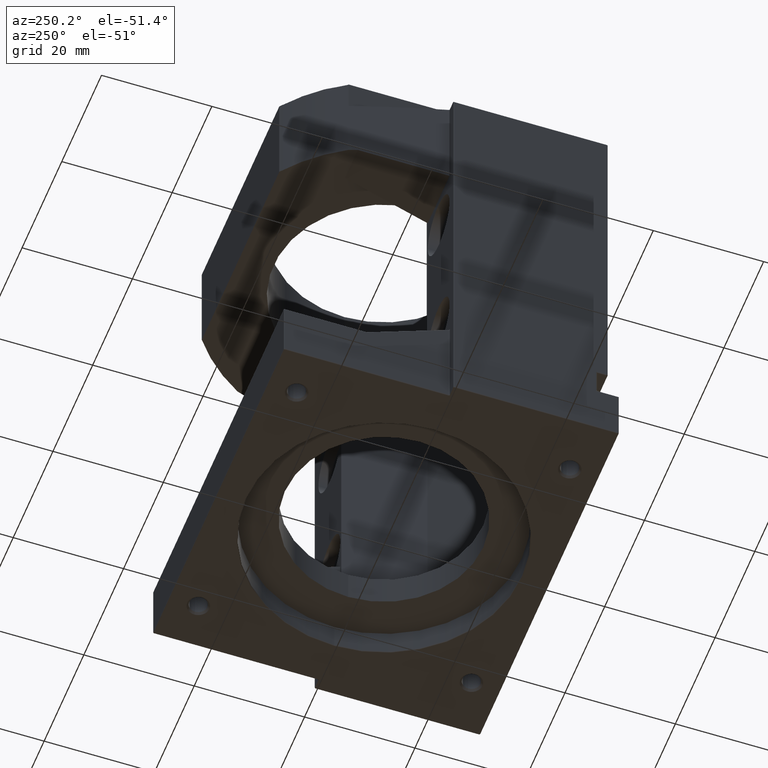
[diagram: clean part render]
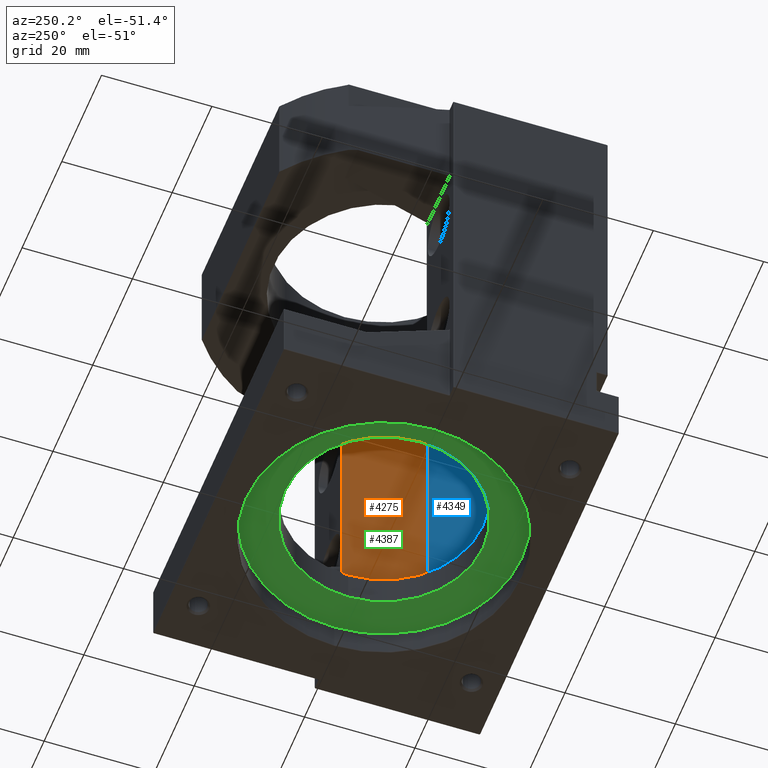
[diagram: same view with three faces highlighted in distinct colors, each labeled with its STEP entity id]
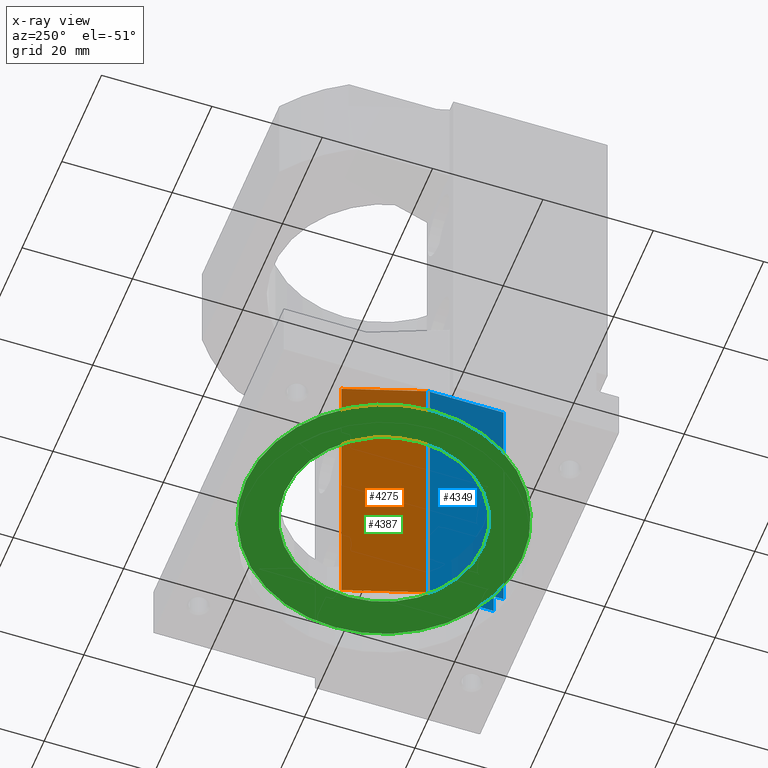
[diagram: x-ray of the same camera — body ghosted, the three highlighted faces saturated]
A machine part, auxiliary view with three faces highlighted in distinct colors.
The next image is the same camera in x-ray (body ghosted, the three faces saturated) — at least one of them is partly hidden behind the body in this view.
Their STEP definitions:

[orange] entity #4275 — the highlighted planar face has unit normal (-0.952, 0.306, 0).
#11 = ORIENTED_EDGE ( 'NONE', *, *, #6142, .F. ) ;
#13 = ORIENTED_EDGE ( 'NONE', *, *, #6146, .T. ) ;
#15 = ORIENTED_EDGE ( 'NONE', *, *, #6437, .F. ) ;
#16 = ORIENTED_EDGE ( 'NONE', *, *, #4325, .T. ) ;
#502 = VERTEX_POINT ( 'NONE', #5855 ) ;
#517 = VERTEX_POINT ( 'NONE', #5767 ) ;
#518 = VERTEX_POINT ( 'NONE', #5766 ) ;
#546 = VERTEX_POINT ( 'NONE', #3110 ) ;
#723 = EDGE_LOOP ( 'NONE', ( #11, #16, #13, #15 ) ) ;
#1371 = FACE_OUTER_BOUND ( 'NONE', #723, .T. ) ;
#1405 = LINE ( 'NONE', #1978, #4573 ) ;
#1697 = LINE ( 'NONE', #3567, #5203 ) ;
#1701 = LINE ( 'NONE', #3575, #5209 ) ;
#1715 = LINE ( 'NONE', #3612, #5233 ) ;
#1978 = CARTESIAN_POINT ( 'NONE',  ( 17.00000000000000700, -13.99999999999999100, 60.50000000000000700 ) ) ;
#1979 = DIRECTION ( 'NONE',  ( 0.3060091804131211400, 0.9520285612852641400, 0.0000000000000000000 ) ) ;
#3110 = CARTESIAN_POINT ( 'NONE',  ( 17.00000000000000700, -13.99999999999999100, 60.50000000000000700 ) ) ;
#3567 = CARTESIAN_POINT ( 'NONE',  ( 17.00000000000000700, -13.99999999999999100, 67.50000000000000000 ) ) ;
#3568 = DIRECTION ( 'NONE',  ( -0.0000000000000000000, -0.0000000000000000000, -1.000000000000000000 ) ) ;
#3575 = CARTESIAN_POINT ( 'NONE',  ( 21.50000000000001400, 8.347237722926682600E-015, 67.50000000000000000 ) ) ;
#3576 = DIRECTION ( 'NONE',  ( -0.0000000000000000000, -0.0000000000000000000, -1.000000000000000000 ) ) ;
#3612 = CARTESIAN_POINT ( 'NONE',  ( 17.00000000000000700, -13.99999999999999100, 5.500000000000000000 ) ) ;
#3613 = DIRECTION ( 'NONE',  ( 0.3060091804131211400, 0.9520285612852641400, 0.0000000000000000000 ) ) ;
#4275 = ADVANCED_FACE ( 'NONE', ( #1371 ), #4948, .T. ) ;
#4325 = EDGE_CURVE ( 'NONE', #546, #502, #1405, .T. ) ;
#4468 = AXIS2_PLACEMENT_3D ( 'NONE', #4577, #4543, #4474 ) ;
#4474 = DIRECTION ( 'NONE',  ( -0.3060091804131211400, -0.9520285612852641400, 0.0000000000000000000 ) ) ;
#4543 = DIRECTION ( 'NONE',  ( -0.9520285612852641400, 0.3060091804131211400, 0.0000000000000000000 ) ) ;
#4573 = VECTOR ( 'NONE', #1979, 1000.000000000000100 ) ;
#4577 = CARTESIAN_POINT ( 'NONE',  ( 17.00000000000000700, -13.99999999999999100, 67.50000000000000000 ) ) ;
#4948 = PLANE ( 'NONE',  #4468 ) ;
#5203 = VECTOR ( 'NONE', #3568, 1000.000000000000000 ) ;
#5209 = VECTOR ( 'NONE', #3576, 1000.000000000000000 ) ;
#5233 = VECTOR ( 'NONE', #3613, 1000.000000000000100 ) ;
#5766 = CARTESIAN_POINT ( 'NONE',  ( 17.00000000000000700, -13.99999999999999100, 5.500000000000000000 ) ) ;
#5767 = CARTESIAN_POINT ( 'NONE',  ( 21.50000000000001400, 6.938893903907228400E-015, 5.500000000000000000 ) ) ;
#5855 = CARTESIAN_POINT ( 'NONE',  ( 21.50000000000001400, 8.673617379884035500E-015, 60.50000000000000700 ) ) ;
#6142 = EDGE_CURVE ( 'NONE', #546, #518, #1697, .T. ) ;
#6146 = EDGE_CURVE ( 'NONE', #502, #517, #1701, .T. ) ;
#6437 = EDGE_CURVE ( 'NONE', #518, #517, #1715, .T. ) ;

[blue] entity #4349 — the highlighted planar face has unit normal (-1, 0, 0).
#17 = ORIENTED_EDGE ( 'NONE', *, *, #6131, .F. ) ;
#18 = ORIENTED_EDGE ( 'NONE', *, *, #4302, .T. ) ;
#19 = ORIENTED_EDGE ( 'NONE', *, *, #6143, .T. ) ;
#20 = ORIENTED_EDGE ( 'NONE', *, *, #6438, .F. ) ;
#21 = ORIENTED_EDGE ( 'NONE', *, *, #6142, .T. ) ;
#22 = ORIENTED_EDGE ( 'NONE', *, *, #6132, .F. ) ;
#420 = VERTEX_POINT ( 'NONE', #5894 ) ;
#421 = VERTEX_POINT ( 'NONE', #5839 ) ;
#518 = VERTEX_POINT ( 'NONE', #5766 ) ;
#519 = VERTEX_POINT ( 'NONE', #5765 ) ;
#546 = VERTEX_POINT ( 'NONE', #3110 ) ;
#547 = VERTEX_POINT ( 'NONE', #3282 ) ;
#724 = EDGE_LOOP ( 'NONE', ( #17, #19, #18, #21, #20, #22 ) ) ;
#1388 = LINE ( 'NONE', #5719, #4528 ) ;
#1440 = FACE_OUTER_BOUND ( 'NONE', #724, .T. ) ;
#1689 = LINE ( 'NONE', #3540, #5188 ) ;
#1690 = LINE ( 'NONE', #3542, #5189 ) ;
#1697 = LINE ( 'NONE', #3567, #5203 ) ;
#1698 = LINE ( 'NONE', #3569, #5205 ) ;
#1716 = LINE ( 'NONE', #3614, #5234 ) ;
#2060 = PLANE ( 'NONE',  #4613 ) ;
#2061 = CARTESIAN_POINT ( 'NONE',  ( 17.00000000000000700, -29.99999999999999300, 67.50000000000000000 ) ) ;
#2062 = DIRECTION ( 'NONE',  ( -1.000000000000000000, 0.0000000000000000000, 0.0000000000000000000 ) ) ;
#2063 = DIRECTION ( 'NONE',  ( 0.0000000000000000000, 0.0000000000000000000, 1.000000000000000000 ) ) ;
#3110 = CARTESIAN_POINT ( 'NONE',  ( 17.00000000000000700, -13.99999999999999100, 60.50000000000000700 ) ) ;
#3282 = CARTESIAN_POINT ( 'NONE',  ( 17.00000000000000700, -27.79999999999999000, 60.50000000000000700 ) ) ;
#3540 = CARTESIAN_POINT ( 'NONE',  ( 17.00000000000000700, -29.99999999999999300, 9.500000000000001800 ) ) ;
#3541 = DIRECTION ( 'NONE',  ( 0.0000000000000000000, 1.000000000000000000, -0.0000000000000000000 ) ) ;
#3542 = CARTESIAN_POINT ( 'NONE',  ( 17.00000000000000700, -26.00000000000003200, 67.50000000000000000 ) ) ;
#3543 = DIRECTION ( 'NONE',  ( 0.0000000000000000000, 6.938893903907228400E-016, -1.000000000000000000 ) ) ;
#3567 = CARTESIAN_POINT ( 'NONE',  ( 17.00000000000000700, -13.99999999999999100, 67.50000000000000000 ) ) ;
#3568 = DIRECTION ( 'NONE',  ( -0.0000000000000000000, -0.0000000000000000000, -1.000000000000000000 ) ) ;
#3569 = CARTESIAN_POINT ( 'NONE',  ( 17.00000000000000700, -27.79999999999999000, 60.50000000000000000 ) ) ;
#3570 = DIRECTION ( 'NONE',  ( -0.0000000000000000000, -0.0000000000000000000, 1.000000000000000000 ) ) ;
#3614 = CARTESIAN_POINT ( 'NONE',  ( 17.00000000000000700, -29.99999999999999300, 5.500000000000000000 ) ) ;
#3615 = DIRECTION ( 'NONE',  ( 0.0000000000000000000, 1.000000000000000000, 0.0000000000000000000 ) ) ;
#4302 = EDGE_CURVE ( 'NONE', #547, #546, #1388, .T. ) ;
#4349 = ADVANCED_FACE ( 'NONE', ( #1440 ), #2060, .T. ) ;
#4528 = VECTOR ( 'NONE', #5704, 1000.000000000000000 ) ;
#4613 = AXIS2_PLACEMENT_3D ( 'NONE', #2061, #2062, #2063 ) ;
#5188 = VECTOR ( 'NONE', #3541, 1000.000000000000000 ) ;
#5189 = VECTOR ( 'NONE', #3543, 1000.000000000000000 ) ;
#5203 = VECTOR ( 'NONE', #3568, 1000.000000000000000 ) ;
#5205 = VECTOR ( 'NONE', #3570, 1000.000000000000000 ) ;
#5234 = VECTOR ( 'NONE', #3615, 1000.000000000000000 ) ;
#5704 = DIRECTION ( 'NONE',  ( 0.0000000000000000000, 1.000000000000000000, 0.0000000000000000000 ) ) ;
#5719 = CARTESIAN_POINT ( 'NONE',  ( 17.00000000000000700, -29.99999999999999300, 60.50000000000000700 ) ) ;
#5765 = CARTESIAN_POINT ( 'NONE',  ( 17.00000000000000700, -25.99999999999999300, 5.500000000000000000 ) ) ;
#5766 = CARTESIAN_POINT ( 'NONE',  ( 17.00000000000000700, -13.99999999999999100, 5.500000000000000000 ) ) ;
#5839 = CARTESIAN_POINT ( 'NONE',  ( 17.00000000000000700, -27.79999999999999000, 9.500000000000001800 ) ) ;
#5894 = CARTESIAN_POINT ( 'NONE',  ( 17.00000000000000700, -25.99999999999999600, 9.500000000000001800 ) ) ;
#6131 = EDGE_CURVE ( 'NONE', #421, #420, #1689, .T. ) ;
#6132 = EDGE_CURVE ( 'NONE', #420, #519, #1690, .T. ) ;
#6142 = EDGE_CURVE ( 'NONE', #546, #518, #1697, .T. ) ;
#6143 = EDGE_CURVE ( 'NONE', #421, #547, #1698, .T. ) ;
#6438 = EDGE_CURVE ( 'NONE', #519, #518, #1716, .T. ) ;

[green] entity #4387 — the highlighted planar face has unit normal (0, 0, -1).
#39 = ORIENTED_EDGE ( 'NONE', *, *, #6129, .T. ) ;
#40 = ORIENTED_EDGE ( 'NONE', *, *, #5512, .T. ) ;
#41 = ORIENTED_EDGE ( 'NONE', *, *, #6140, .F. ) ;
#42 = ORIENTED_EDGE ( 'NONE', *, *, #6050, .F. ) ;
#405 = VERTEX_POINT ( 'NONE', #5884 ) ;
#406 = VERTEX_POINT ( 'NONE', #5838 ) ;
#487 = VERTEX_POINT ( 'NONE', #5761 ) ;
#488 = VERTEX_POINT ( 'NONE', #5760 ) ;
#729 = EDGE_LOOP ( 'NONE', ( #39, #40 ) ) ;
#730 = EDGE_LOOP ( 'NONE', ( #41, #42 ) ) ;
#1478 = FACE_OUTER_BOUND ( 'NONE', #729, .T. ) ;
#1479 = FACE_BOUND ( 'NONE', #730, .T. ) ;
#2182 = PLANE ( 'NONE',  #4694 ) ;
#2183 = CARTESIAN_POINT ( 'NONE',  ( 0.0000000000000000000, 0.0000000000000000000, -0.4999999999999995600 ) ) ;
#2184 = DIRECTION ( 'NONE',  ( 0.0000000000000000000, 0.0000000000000000000, -1.000000000000000000 ) ) ;
#2185 = DIRECTION ( 'NONE',  ( -1.000000000000000000, 0.0000000000000000000, -0.0000000000000000000 ) ) ;
#2221 = CARTESIAN_POINT ( 'NONE',  ( 0.0000000000000000000, 0.0000000000000000000, -0.4999999999999995600 ) ) ;
#2222 = DIRECTION ( 'NONE',  ( 0.0000000000000000000, 0.0000000000000000000, -1.000000000000000000 ) ) ;
#2223 = DIRECTION ( 'NONE',  ( -1.000000000000000000, 0.0000000000000000000, 0.0000000000000000000 ) ) ;
#2922 = CARTESIAN_POINT ( 'NONE',  ( 0.0000000000000000000, 0.0000000000000000000, -0.4999999999999995600 ) ) ;
#2923 = DIRECTION ( 'NONE',  ( 0.0000000000000000000, 0.0000000000000000000, -1.000000000000000000 ) ) ;
#2924 = DIRECTION ( 'NONE',  ( -1.000000000000000000, 0.0000000000000000000, 0.0000000000000000000 ) ) ;
#3535 = CARTESIAN_POINT ( 'NONE',  ( 0.0000000000000000000, 0.0000000000000000000, -0.4999999999999995600 ) ) ;
#3536 = DIRECTION ( 'NONE',  ( 0.0000000000000000000, 0.0000000000000000000, -1.000000000000000000 ) ) ;
#3537 = DIRECTION ( 'NONE',  ( -1.000000000000000000, 0.0000000000000000000, 0.0000000000000000000 ) ) ;
#3562 = CARTESIAN_POINT ( 'NONE',  ( 0.0000000000000000000, 0.0000000000000000000, -0.4999999999999995600 ) ) ;
#3563 = DIRECTION ( 'NONE',  ( 0.0000000000000000000, 0.0000000000000000000, -1.000000000000000000 ) ) ;
#3564 = DIRECTION ( 'NONE',  ( -1.000000000000000000, 0.0000000000000000000, 0.0000000000000000000 ) ) ;
#4387 = ADVANCED_FACE ( 'NONE', ( #1478, #1479 ), #2182, .T. ) ;
#4694 = AXIS2_PLACEMENT_3D ( 'NONE', #2183, #2184, #2185 ) ;
#4701 = CIRCLE ( 'NONE', #4703, 25.00000000000000000 ) ;
#4703 = AXIS2_PLACEMENT_3D ( 'NONE', #2221, #2222, #2223 ) ;
#5062 = CIRCLE ( 'NONE', #5078, 18.00000000000000000 ) ;
#5078 = AXIS2_PLACEMENT_3D ( 'NONE', #2922, #2923, #2924 ) ;
#5180 = CIRCLE ( 'NONE', #5185, 25.00000000000000000 ) ;
#5185 = AXIS2_PLACEMENT_3D ( 'NONE', #3535, #3536, #3537 ) ;
#5193 = CIRCLE ( 'NONE', #5201, 18.00000000000000000 ) ;
#5201 = AXIS2_PLACEMENT_3D ( 'NONE', #3562, #3563, #3564 ) ;
#5512 = EDGE_CURVE ( 'NONE', #406, #405, #4701, .T. ) ;
#5760 = CARTESIAN_POINT ( 'NONE',  ( 18.00000000000000000, 2.204364238465235400E-015, -0.4999999999999995600 ) ) ;
#5761 = CARTESIAN_POINT ( 'NONE',  ( -18.00000000000000000, 0.0000000000000000000, -0.4999999999999995600 ) ) ;
#5838 = CARTESIAN_POINT ( 'NONE',  ( 25.00000000000000000, 3.061616997868383000E-015, -0.4999999999999995600 ) ) ;
#5884 = CARTESIAN_POINT ( 'NONE',  ( -25.00000000000000000, 0.0000000000000000000, -0.4999999999999995600 ) ) ;
#6050 = EDGE_CURVE ( 'NONE', #488, #487, #5062, .T. ) ;
#6129 = EDGE_CURVE ( 'NONE', #405, #406, #5180, .T. ) ;
#6140 = EDGE_CURVE ( 'NONE', #487, #488, #5193, .T. ) ;